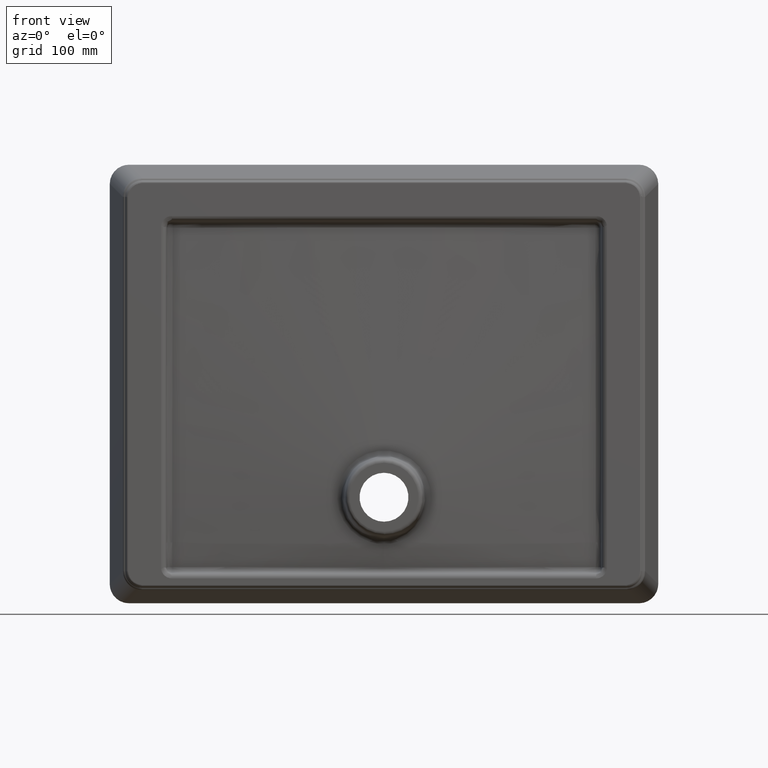
[diagram: clean part render]
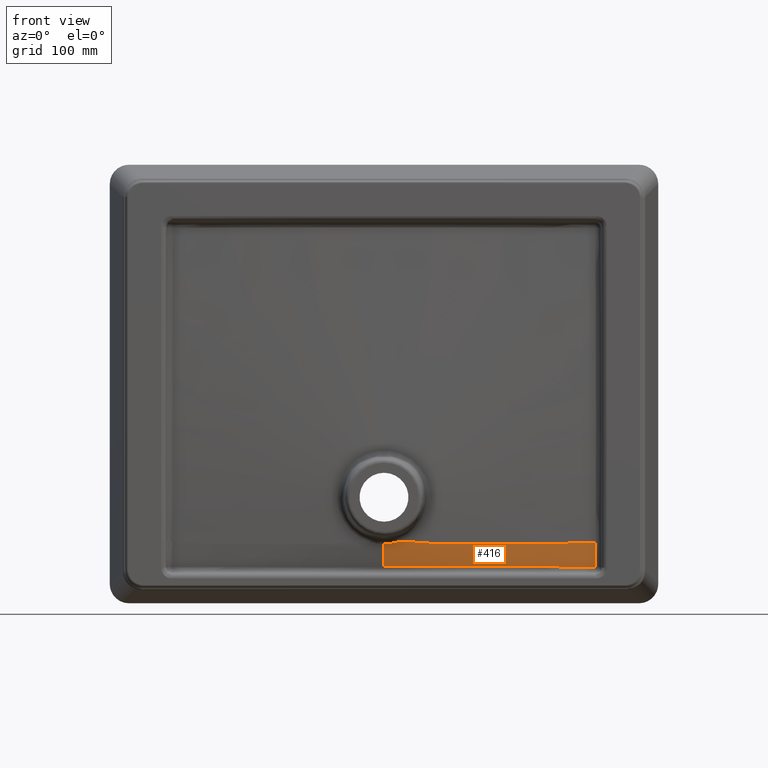
[diagram: same view with one face highlighted and labeled with its STEP entity id]
A machine part, front view. The second image highlights one B-rep face of the part: STEP entity #416.
In plain terms, the highlighted face is a freeform B-spline surface patch.
Its self-contained STEP definition (entity closure, byte-faithful):
#416=ADVANCED_FACE('',(#560),#519,.T.);
#519=B_SPLINE_SURFACE_WITH_KNOTS('',3,3,((#5228,#5229,#5230,#5231,#5232,
#5233,#5234,#5235,#5236,#5237,#5238,#5239,#5240,#5241,#5242,#5243),(#5244,
#5245,#5246,#5247,#5248,#5249,#5250,#5251,#5252,#5253,#5254,#5255,#5256,
#5257,#5258,#5259),(#5260,#5261,#5262,#5263,#5264,#5265,#5266,#5267,#5268,
#5269,#5270,#5271,#5272,#5273,#5274,#5275),(#5276,#5277,#5278,#5279,#5280,
#5281,#5282,#5283,#5284,#5285,#5286,#5287,#5288,#5289,#5290,#5291),(#5292,
#5293,#5294,#5295,#5296,#5297,#5298,#5299,#5300,#5301,#5302,#5303,#5304,
#5305,#5306,#5307),(#5308,#5309,#5310,#5311,#5312,#5313,#5314,#5315,#5316,
#5317,#5318,#5319,#5320,#5321,#5322,#5323),(#5324,#5325,#5326,#5327,#5328,
#5329,#5330,#5331,#5332,#5333,#5334,#5335,#5336,#5337,#5338,#5339),(#5340,
#5341,#5342,#5343,#5344,#5345,#5346,#5347,#5348,#5349,#5350,#5351,#5352,
#5353,#5354,#5355),(#5356,#5357,#5358,#5359,#5360,#5361,#5362,#5363,#5364,
#5365,#5366,#5367,#5368,#5369,#5370,#5371),(#5372,#5373,#5374,#5375,#5376,
#5377,#5378,#5379,#5380,#5381,#5382,#5383,#5384,#5385,#5386,#5387),(#5388,
#5389,#5390,#5391,#5392,#5393,#5394,#5395,#5396,#5397,#5398,#5399,#5400,
#5401,#5402,#5403),(#5404,#5405,#5406,#5407,#5408,#5409,#5410,#5411,#5412,
#5413,#5414,#5415,#5416,#5417,#5418,#5419),(#5420,#5421,#5422,#5423,#5424,
#5425,#5426,#5427,#5428,#5429,#5430,#5431,#5432,#5433,#5434,#5435)),
 .UNSPECIFIED.,.F.,.F.,.F.,(4,3,3,3,4),(4,3,3,3,3,4),(0.,0.125,0.25,0.5,
1.),(0.,0.25,0.5,0.75,0.875,1.),.UNSPECIFIED.);
#560=FACE_OUTER_BOUND('',#707,.T.);
#707=EDGE_LOOP('',(#1218,#1219,#1220,#1221,#1222,#1223,#1224,#1225));
#839=B_SPLINE_CURVE_WITH_KNOTS('',3,(#3304,#3305,#3306,#3307),
 .UNSPECIFIED.,.F.,.F.,(4,4),(0.,1.),.UNSPECIFIED.);
#840=B_SPLINE_CURVE_WITH_KNOTS('',3,(#3309,#3310,#3311,#3312,#3313,#3314,
#3315,#3316,#3317,#3318,#3319,#3320,#3321,#3322,#3323,#3324,#3325,#3326,
#3327,#3328,#3329,#3330,#3331,#3332,#3333,#3334,#3335,#3336,#3337,#3338,
#3339,#3340,#3341,#3342,#3343,#3344,#3345,#3346,#3347,#3348,#3349,#3350,
#3351,#3352,#3353,#3354,#3355,#3356,#3357,#3358,#3359,#3360,#3361,#3362,
#3363,#3364,#3365,#3366,#3367,#3368,#3369,#3370,#3371,#3372,#3373,#3374,
#3375,#3376,#3377,#3378,#3379,#3380,#3381,#3382,#3383,#3384,#3385,#3386,
#3387,#3388,#3389,#3390,#3391,#3392,#3393,#3394,#3395,#3396,#3397,#3398,
#3399,#3400,#3401,#3402,#3403,#3404,#3405,#3406,#3407,#3408,#3409,#3410,
#3411,#3412,#3413,#3414,#3415,#3416,#3417,#3418,#3419,#3420,#3421,#3422,
#3423,#3424,#3425,#3426,#3427,#3428,#3429,#3430,#3431,#3432,#3433,#3434,
#3435,#3436,#3437,#3438,#3439,#3440,#3441,#3442,#3443,#3444,#3445,#3446,
#3447,#3448,#3449,#3450,#3451,#3452,#3453,#3454,#3455,#3456,#3457,#3458,
#3459,#3460,#3461,#3462,#3463,#3464,#3465,#3466,#3467,#3468,#3469,#3470,
#3471,#3472,#3473,#3474,#3475,#3476,#3477,#3478,#3479,#3480,#3481,#3482,
#3483,#3484,#3485,#3486,#3487,#3488,#3489,#3490,#3491,#3492,#3493,#3494,
#3495,#3496,#3497,#3498,#3499,#3500,#3501,#3502,#3503,#3504),
 .UNSPECIFIED.,.F.,.F.,(4,2,2,2,2,2,2,2,2,2,2,2,2,2,2,2,2,2,2,2,2,2,2,1,
1,1,1,2,2,2,2,2,2,2,2,2,2,2,2,2,2,2,2,2,2,2,2,2,2,2,2,2,2,2,2,2,2,2,2,2,
2,2,2,2,2,2,2,2,2,2,2,2,2,2,2,2,2,2,2,2,2,2,2,2,2,2,2,2,2,2,2,2,2,2,2,2,
2,2,2,4),(0.,0.0156249999999969,0.0234374999999954,0.0312499999999938,0.0390624999999923,
0.0468749999999908,0.0546874999999892,0.0585937499999885,0.0624999999999877,
0.066406249999987,0.0703124999999862,0.0781249999999846,0.0820312499999838,
0.085937499999983,0.0898437499999823,0.0917968749999818,0.0927734374999817,
0.0937499999999816,0.0976562499999813,0.101562499999981,0.105468749999981,
0.10937499999998,0.11132812499998,0.11328124999998,0.11718749999998,0.12499999999998,
0.12890624999998,0.13085937499998,0.13281249999998,0.140624999999979,0.148437499999979,
0.152343749999979,0.153320312499979,0.154296874999979,0.156249999999979,
0.160156249999979,0.164062499999979,0.166015624999979,0.167968749999978,
0.169921874999978,0.171874999999978,0.175781249999978,0.179687499999978,
0.181640624999977,0.183593749999977,0.187499999999977,0.218749999999974,
0.249999999999972,0.257812499999971,0.261718749999971,0.26562499999997,
0.281249999999969,0.289062499999969,0.291015624999969,0.292968749999968,
0.296874999999968,0.312499999999966,0.343749999999961,0.374999999999956,
0.406249999999951,0.437499999999946,0.439453124999946,0.441406249999946,
0.445312499999946,0.453124999999946,0.468749999999946,0.484374999999946,
0.492187499999946,0.499999999999946,0.515624999999946,0.531249999999946,
0.562499999999946,0.593749999999946,0.609374999999946,0.617187499999946,
0.621093749999946,0.623046874999946,0.624999999999946,0.749999999999942,
0.781249999999941,0.81249999999994,0.82031249999994,0.82812499999994,0.83007812499994,
0.83203124999994,0.83398437499994,0.835937499999941,0.843749999999943,0.874999999999953,
0.890624999999958,0.898437499999961,0.900390624999961,0.902343749999962,
0.906249999999964,0.92187499999997,0.937499999999977,0.94531249999998,0.953124999999983,
0.968749999999988,1.),.UNSPECIFIED.);
#870=B_SPLINE_CURVE_WITH_KNOTS('',3,(#3902,#3903,#3904,#3905,#3906,#3907),
 .UNSPECIFIED.,.F.,.F.,(4,2,4),(0.,0.5,1.),.UNSPECIFIED.);
#912=B_SPLINE_CURVE_WITH_KNOTS('',3,(#5195,#5196,#5197,#5198),
 .UNSPECIFIED.,.F.,.F.,(4,4),(0.,1.),.UNSPECIFIED.);
#913=B_SPLINE_CURVE_WITH_KNOTS('',3,(#5201,#5202,#5203,#5204,#5205,#5206,
#5207),.UNSPECIFIED.,.F.,.F.,(4,3,4),(0.,0.444975304330871,1.),
 .UNSPECIFIED.);
#914=B_SPLINE_CURVE_WITH_KNOTS('',3,(#5208,#5209,#5210,#5211,#5212,#5213,
#5214),.UNSPECIFIED.,.F.,.F.,(4,3,4),(0.,0.999514951553295,1.),
 .UNSPECIFIED.);
#915=B_SPLINE_CURVE_WITH_KNOTS('',3,(#5216,#5217,#5218,#5219,#5220,#5221),
 .UNSPECIFIED.,.F.,.F.,(4,2,4),(0.,0.5,1.),.UNSPECIFIED.);
#916=B_SPLINE_CURVE_WITH_KNOTS('',3,(#5222,#5223,#5224,#5225,#5226,#5227),
 .UNSPECIFIED.,.F.,.F.,(4,2,4),(0.,0.5,1.),.UNSPECIFIED.);
#1218=ORIENTED_EDGE('',*,*,#1942,.T.);
#1219=ORIENTED_EDGE('',*,*,#1943,.T.);
#1220=ORIENTED_EDGE('',*,*,#1836,.F.);
#1221=ORIENTED_EDGE('',*,*,#1835,.F.);
#1222=ORIENTED_EDGE('',*,*,#1944,.T.);
#1223=ORIENTED_EDGE('',*,*,#1945,.T.);
#1224=ORIENTED_EDGE('',*,*,#1879,.T.);
#1225=ORIENTED_EDGE('',*,*,#1946,.T.);
#1659=VERTEX_POINT('',#3303);
#1660=VERTEX_POINT('',#3308);
#1661=VERTEX_POINT('',#3505);
#1697=VERTEX_POINT('',#3901);
#1698=VERTEX_POINT('',#3908);
#1735=VERTEX_POINT('',#5199);
#1736=VERTEX_POINT('',#5200);
#1737=VERTEX_POINT('',#5215);
#1835=EDGE_CURVE('',#1659,#1660,#839,.T.);
#1836=EDGE_CURVE('',#1660,#1661,#840,.T.);
#1879=EDGE_CURVE('',#1698,#1697,#870,.T.);
#1942=EDGE_CURVE('',#1735,#1736,#912,.T.);
#1943=EDGE_CURVE('',#1736,#1661,#913,.T.);
#1944=EDGE_CURVE('',#1659,#1737,#914,.T.);
#1945=EDGE_CURVE('',#1737,#1698,#915,.T.);
#1946=EDGE_CURVE('',#1697,#1735,#916,.T.);
#3303=CARTESIAN_POINT('',(12.7641846461813,-148.449136125179,56.3514457522441));
#3304=CARTESIAN_POINT('',(12.7641831222681,-148.45028316331,56.3511137498274));
#3305=CARTESIAN_POINT('',(13.01532953824,-148.445446886754,56.3332520757364));
#3306=CARTESIAN_POINT('',(13.2677387840246,-148.440542512188,56.3164499230202));
#3307=CARTESIAN_POINT('',(13.521429877298,-148.435570039612,56.3007535722057));
#3308=CARTESIAN_POINT('',(13.5215017947676,-148.433203962451,56.3008718843341));
#3309=CARTESIAN_POINT('',(13.5215364294115,-148.435569378775,56.3007756847339));
#3310=CARTESIAN_POINT('',(14.4252144634466,-148.42996459115,56.4883119187415));
#3311=CARTESIAN_POINT('',(15.3381803923015,-148.420629479891,56.6339492582143));
#3312=CARTESIAN_POINT('',(16.8080204288,-148.398163937486,56.7669306670097));
#3313=CARTESIAN_POINT('',(17.3433159636829,-148.386913906574,56.7614362376043));
#3314=CARTESIAN_POINT('',(18.2693596732294,-148.367457159542,56.7652615796201));
#3315=CARTESIAN_POINT('',(18.5556881932553,-148.362597374083,56.7948397162348));
#3316=CARTESIAN_POINT('',(19.387714490138,-148.343925936491,56.793499642557));
#3317=CARTESIAN_POINT('',(19.8958899407612,-148.331484561331,56.7758054120756));
#3318=CARTESIAN_POINT('',(21.1059721877338,-148.300390498282,56.7263237758037));
#3319=CARTESIAN_POINT('',(21.5568838424795,-148.288136250257,56.7019053632918));
#3320=CARTESIAN_POINT('',(22.5279929124427,-148.260264425107,56.626534572149));
#3321=CARTESIAN_POINT('',(23.0359187665822,-148.245912236566,56.600240230788));
#3322=CARTESIAN_POINT('',(23.3777910143892,-148.236209245294,56.5834179737185));
#3323=CARTESIAN_POINT('',(23.5656287417157,-148.23071672436,56.5708227996222));
#3324=CARTESIAN_POINT('',(24.0915526661437,-148.215215301469,56.5373685934679));
#3325=CARTESIAN_POINT('',(24.4716167465737,-148.203989620005,56.5153134706294));
#3326=CARTESIAN_POINT('',(25.1139035292725,-148.184931084614,56.482102970947));
#3327=CARTESIAN_POINT('',(25.384431086423,-148.176839613303,56.4692235239053));
#3328=CARTESIAN_POINT('',(25.8219864277111,-148.163532263446,56.4452312374962));
#3329=CARTESIAN_POINT('',(25.9346844456366,-148.160014572978,56.4374792255796));
#3330=CARTESIAN_POINT('',(26.6425556726926,-148.13719254716,56.3757970390452));
#3331=CARTESIAN_POINT('',(27.1500856490713,-148.120511521211,56.32949226275));
#3332=CARTESIAN_POINT('',(27.9672485675921,-148.093290469182,56.2571223665317));
#3333=CARTESIAN_POINT('',(28.2489488704272,-148.083850199655,56.2325213669971));
#3334=CARTESIAN_POINT('',(28.8313927983221,-148.064236489565,56.1832704992501));
#3335=CARTESIAN_POINT('',(29.147304986458,-148.05354579265,56.1575990853675));
#3336=CARTESIAN_POINT('',(29.6250271638988,-148.037386822453,56.1213792511557));
#3337=CARTESIAN_POINT('',(29.8051675472403,-148.031277360882,56.1085009662102));
#3338=CARTESIAN_POINT('',(29.985993923155,-148.025068203816,56.0940005338302));
#3339=CARTESIAN_POINT('',(30.0313814148105,-148.023490990676,56.0899905177871));
#3340=CARTESIAN_POINT('',(30.0770489345454,-148.021863929789,56.0850197326812));
#3341=CARTESIAN_POINT('',(30.1667943594994,-148.018633674032,56.0745398833383));
#3342=CARTESIAN_POINT('',(30.2384090045914,-148.016060902024,56.0663753333138));
#3343=CARTESIAN_POINT('',(30.2470511300647,-148.015750670477,56.0654035918747));
#3344=CARTESIAN_POINT('',(30.3867708421355,-148.010782864701,56.0508350638881));
#3345=CARTESIAN_POINT('',(30.6593499966239,-148.001211375238,56.0256588086729));
#3346=CARTESIAN_POINT('',(31.2577177696986,-147.980246898526,55.9762282957103));
#3347=CARTESIAN_POINT('',(31.5547461410639,-147.969834962956,55.953400305829));
#3348=CARTESIAN_POINT('',(32.1442944417956,-147.949151697389,55.9111793347389));
#3349=CARTESIAN_POINT('',(32.4540074666197,-147.938297314986,55.8915054755541));
#3350=CARTESIAN_POINT('',(32.839273635891,-147.924561591727,55.8627171836098));
#3351=CARTESIAN_POINT('',(32.8777138733649,-147.923035585983,55.8557966164381));
#3352=CARTESIAN_POINT('',(33.3447453254482,-147.90573945802,55.8083482880054));
#3353=CARTESIAN_POINT('',(33.4199550593247,-147.902944213321,55.8007123599811));
#3354=CARTESIAN_POINT('',(33.6509374370893,-147.894349765895,55.7772462459279));
#3355=CARTESIAN_POINT('',(33.9978090925134,-147.881413067416,55.742000656981));
#3356=CARTESIAN_POINT('',(34.8099661605049,-147.850912246256,55.6594018992734));
#3357=CARTESIAN_POINT('',(35.7445357393279,-147.815333727504,55.5640240023275));
#3358=CARTESIAN_POINT('',(36.5678876359298,-147.783572140847,55.4794132222014));
#3359=CARTESIAN_POINT('',(36.9219536547639,-147.769824950262,55.4428697238139));
#3360=CARTESIAN_POINT('',(37.1582645290454,-147.760630138312,55.4184409183045));
#3361=CARTESIAN_POINT('',(37.3263030683589,-147.754076878798,55.4009776690728));
#3362=CARTESIAN_POINT('',(38.1840330083668,-147.720707930497,55.3167708154223));
#3363=CARTESIAN_POINT('',(38.7812148079083,-147.697622668637,55.2696242515042));
#3364=CARTESIAN_POINT('',(39.7894719472165,-147.658671938479,55.1976513655516));
#3365=CARTESIAN_POINT('',(40.2005706086019,-147.64280647018,55.1728106492533));
#3366=CARTESIAN_POINT('',(40.6738838379457,-147.624423112902,55.1428232781517));
#3367=CARTESIAN_POINT('',(40.8077873307249,-147.619197801338,55.1340843306759));
#3368=CARTESIAN_POINT('',(40.9450861355161,-147.613794254626,55.1240893440498));
#3369=CARTESIAN_POINT('',(41.033349719449,-147.610318188991,55.1176698908443));
#3370=CARTESIAN_POINT('',(41.0700109386898,-147.608875291055,55.115051339223));
#3371=CARTESIAN_POINT('',(41.0909499126222,-147.608053400819,55.1136175015509));
#3372=CARTESIAN_POINT('',(41.188831498952,-147.604217347189,55.1071372708802));
#3373=CARTESIAN_POINT('',(41.2889609572553,-147.600299271981,55.1007183785015));
#3374=CARTESIAN_POINT('',(41.6946068554836,-147.584462927993,55.0768035682037));
#3375=CARTESIAN_POINT('',(42.0251642544757,-147.571571388123,55.059104951223));
#3376=CARTESIAN_POINT('',(42.6394824762914,-147.547581550559,55.0286617252091));
#3377=CARTESIAN_POINT('',(43.0102732294429,-147.533085802183,55.0120946972211));
#3378=CARTESIAN_POINT('',(43.3041278684933,-147.52161907864,55.0005011873181));
#3379=CARTESIAN_POINT('',(43.3166638303676,-147.52112991059,55.0000587527892));
#3380=CARTESIAN_POINT('',(43.4154149395532,-147.51728387269,54.9965339297939));
#3381=CARTESIAN_POINT('',(43.5830781283932,-147.510736656287,54.9902563392146));
#3382=CARTESIAN_POINT('',(43.8144724607932,-147.501630805249,54.9802329524513));
#3383=CARTESIAN_POINT('',(43.9346168066514,-147.496879350946,54.9745900663412));
#3384=CARTESIAN_POINT('',(44.1838612297979,-147.486979384772,54.9621899810127));
#3385=CARTESIAN_POINT('',(44.1742806183803,-147.4873572493,54.9625480825217));
#3386=CARTESIAN_POINT('',(44.6152752730057,-147.469963632036,54.9451904575777));
#3387=CARTESIAN_POINT('',(44.8860855650187,-147.459277497594,54.935762114721));
#3388=CARTESIAN_POINT('',(45.3551306280355,-147.440740276968,54.9201312059938));
#3389=CARTESIAN_POINT('',(45.5747661853539,-147.432067685811,54.9137078741684));
#3390=CARTESIAN_POINT('',(45.9836968457392,-147.415869831754,54.9021026508044));
#3391=CARTESIAN_POINT('',(46.1606710192133,-147.408846920328,54.8971474998412));
#3392=CARTESIAN_POINT('',(46.3907010508338,-147.399747190888,54.8919590190573));
#3393=CARTESIAN_POINT('',(46.3793530315867,-147.400212256252,54.8926570652978));
#3394=CARTESIAN_POINT('',(46.7365516271467,-147.385992993453,54.8828857169282));
#3395=CARTESIAN_POINT('',(46.9977238144552,-147.375609678754,54.8771145246389));
#3396=CARTESIAN_POINT('',(49.1046049212763,-147.290226513303,54.7915423956871));
#3397=CARTESIAN_POINT('',(50.9842667913653,-147.213414748448,54.7473329099384));
#3398=CARTESIAN_POINT('',(54.7382110673983,-147.059215787992,54.7310118155593));
#3399=CARTESIAN_POINT('',(56.6130102737665,-146.978253780639,54.6409636711423));
#3400=CARTESIAN_POINT('',(58.964116440922,-146.888006088376,54.9596089090647));
#3401=CARTESIAN_POINT('',(59.4340453476354,-146.869855849378,55.0234154686529));
#3402=CARTESIAN_POINT('',(60.1385658952477,-146.842644847965,55.1246903380077));
#3403=CARTESIAN_POINT('',(60.3732680202706,-146.833582376384,55.1594596579902));
#3404=CARTESIAN_POINT('',(60.8425080303316,-146.815389411608,55.2283558796915));
#3405=CARTESIAN_POINT('',(61.076575324193,-146.804824950494,55.2134998470835));
#3406=CARTESIAN_POINT('',(62.2459907110282,-146.748515480597,55.0211276554422));
#3407=CARTESIAN_POINT('',(63.1418813440759,-146.705378534828,54.8790530152034));
#3408=CARTESIAN_POINT('',(64.6096745128139,-146.634735534528,54.6565294632456));
#3409=CARTESIAN_POINT('',(65.0394817417072,-146.621736237488,54.8607926351453));
#3410=CARTESIAN_POINT('',(65.6083746714593,-146.601304763892,55.0256528705782));
#3411=CARTESIAN_POINT('',(65.7222049752455,-146.597382669709,55.0648262375663));
#3412=CARTESIAN_POINT('',(65.9497377268422,-146.588830096643,55.1183669118678));
#3413=CARTESIAN_POINT('',(66.0628198590473,-146.582414886563,55.0681708196332));
#3414=CARTESIAN_POINT('',(66.403017788004,-146.564508549298,54.9666410188153));
#3415=CARTESIAN_POINT('',(66.6297172845771,-146.552570253317,54.8989193193855));
#3416=CARTESIAN_POINT('',(67.7638943762938,-146.492839267647,54.56069749591));
#3417=CARTESIAN_POINT('',(68.7275409735668,-146.453293088656,54.6798515350869));
#3418=CARTESIAN_POINT('',(71.5690057406466,-146.327596118722,54.7385011154183));
#3419=CARTESIAN_POINT('',(73.4624663921147,-146.243367758437,54.7967597669218));
#3420=CARTESIAN_POINT('',(77.2472106605089,-146.074705608821,54.9720081704373));
#3421=CARTESIAN_POINT('',(79.1232677657115,-145.985236461684,54.8599769478805));
#3422=CARTESIAN_POINT('',(82.8716644599585,-145.807257643472,54.7040576452518));
#3423=CARTESIAN_POINT('',(84.7469181719425,-145.718488573712,54.6602864335146));
#3424=CARTESIAN_POINT('',(88.4977258855029,-145.540061323594,54.5797161598963));
#3425=CARTESIAN_POINT('',(90.4357646911075,-145.448266300689,54.5799549255342));
#3426=CARTESIAN_POINT('',(92.28964315374,-145.359993169118,54.5793752291759));
#3427=CARTESIAN_POINT('',(92.4465911133763,-145.352584680674,54.5824001966708));
#3428=CARTESIAN_POINT('',(92.6814419324693,-145.341445041892,54.584669260725));
#3429=CARTESIAN_POINT('',(92.7988686194928,-145.335841022344,54.5843246981259));
#3430=CARTESIAN_POINT('',(93.1511401995651,-145.319149279055,54.5890573677885));
#3431=CARTESIAN_POINT('',(93.3859959270798,-145.30792096107,54.5879493387905));
#3432=CARTESIAN_POINT('',(94.0905121451216,-145.274539375837,54.599552629295));
#3433=CARTESIAN_POINT('',(94.560221269517,-145.252089650795,54.599680417809));
#3434=CARTESIAN_POINT('',(95.9691410826103,-145.185251848476,54.6275733624805));
#3435=CARTESIAN_POINT('',(96.9084788088977,-145.140447659413,54.6402943393013));
#3436=CARTESIAN_POINT('',(98.7866308712984,-145.051123725498,54.6889626117704));
#3437=CARTESIAN_POINT('',(99.725716066473,-145.006404353444,54.7160701349987));
#3438=CARTESIAN_POINT('',(101.133934804728,-144.939348373296,54.7651028524435));
#3439=CARTESIAN_POINT('',(101.603341278618,-144.916987303309,54.782372870013));
#3440=CARTESIAN_POINT('',(102.542017398366,-144.872267526567,54.8194405676386));
#3441=CARTESIAN_POINT('',(102.976578773147,-144.851724214159,54.8459785326668));
#3442=CARTESIAN_POINT('',(104.474587825188,-144.778209595856,54.804909593179));
#3443=CARTESIAN_POINT('',(105.358714940714,-144.734771514927,54.7820398229324));
#3444=CARTESIAN_POINT('',(107.236943432316,-144.642574115893,54.7448182617173));
#3445=CARTESIAN_POINT('',(108.176087475679,-144.596427025316,54.7276017336681));
#3446=CARTESIAN_POINT('',(110.993788690244,-144.458109877545,54.6946215598283));
#3447=CARTESIAN_POINT('',(112.872382963624,-144.365786815646,54.6822948129311));
#3448=CARTESIAN_POINT('',(116.629518549634,-144.181285269304,54.6957094994707));
#3449=CARTESIAN_POINT('',(118.508075465598,-144.088955488172,54.7132132959465));
#3450=CARTESIAN_POINT('',(121.32545381194,-143.950505605471,54.7633696871752));
#3451=CARTESIAN_POINT('',(122.264562241604,-143.904337879766,54.7827995954277));
#3452=CARTESIAN_POINT('',(123.673045104305,-143.835088583218,54.8172102019933));
#3453=CARTESIAN_POINT('',(124.142535231938,-143.812006083151,54.8296500476196));
#3454=CARTESIAN_POINT('',(124.846723880834,-143.777368916735,54.8487868695941));
#3455=CARTESIAN_POINT('',(125.056293445688,-143.767062704342,54.8547552668881));
#3456=CARTESIAN_POINT('',(125.500468949179,-143.745210803704,54.8675167444341));
#3457=CARTESIAN_POINT('',(125.579765571675,-143.741344001838,54.8719265921492));
#3458=CARTESIAN_POINT('',(125.642579702752,-143.73812710816,54.8661767472368));
#3459=CARTESIAN_POINT('',(125.86556698718,-143.726985353448,54.8625026404961));
#3460=CARTESIAN_POINT('',(133.48630878193,-143.344824653229,54.6578708327449));
#3461=CARTESIAN_POINT('',(140.993629178066,-142.968229494467,54.6175941198658));
#3462=CARTESIAN_POINT('',(150.37472860291,-142.497882166591,54.7944549027117));
#3463=CARTESIAN_POINT('',(152.250764346886,-142.403685844056,54.8308070532208));
#3464=CARTESIAN_POINT('',(156.002347613315,-142.215418208413,54.9314411489869));
#3465=CARTESIAN_POINT('',(157.854081351106,-142.122000159288,54.9544787378004));
#3466=CARTESIAN_POINT('',(160.533384095078,-141.986841216421,55.0036689107773));
#3467=CARTESIAN_POINT('',(161.123030116925,-141.957100748502,55.0157478261499));
#3468=CARTESIAN_POINT('',(162.089573133153,-141.908339266505,55.0359509480726));
#3469=CARTESIAN_POINT('',(162.457827162624,-141.889751815773,55.0435252777232));
#3470=CARTESIAN_POINT('',(162.774201923003,-141.873759115191,55.0483179015249));
#3471=CARTESIAN_POINT('',(162.79948605152,-141.872480325813,55.0486421515024));
#3472=CARTESIAN_POINT('',(163.056028221354,-141.859498201422,55.0515523764447));
#3473=CARTESIAN_POINT('',(163.092395047149,-141.857657983663,55.0519811982242));
#3474=CARTESIAN_POINT('',(163.347125403632,-141.844768876949,55.0550932682586));
#3475=CARTESIAN_POINT('',(163.476553252677,-141.838220501565,55.0567662261681));
#3476=CARTESIAN_POINT('',(163.611900252162,-141.831372857453,55.0585510547133));
#3477=CARTESIAN_POINT('',(163.646379544344,-141.829628516477,55.0590170503897));
#3478=CARTESIAN_POINT('',(163.959167282336,-141.813805387007,55.0633654245317));
#3479=CARTESIAN_POINT('',(164.402039511421,-141.791404878135,55.0698726451092));
#3480=CARTESIAN_POINT('',(167.376695086762,-141.641002330429,55.1235275170436));
#3481=CARTESIAN_POINT('',(169.123428324083,-141.552647774148,55.1633276306466));
#3482=CARTESIAN_POINT('',(171.934898019947,-141.410411314855,55.23521162975));
#3483=CARTESIAN_POINT('',(173.011992696076,-141.355895598445,55.2629276423873));
#3484=CARTESIAN_POINT('',(174.848399075486,-141.262945121562,55.3160486283707));
#3485=CARTESIAN_POINT('',(175.254829818574,-141.242382935426,55.3294197112975));
#3486=CARTESIAN_POINT('',(175.417744127024,-141.234148875289,55.3354234053331));
#3487=CARTESIAN_POINT('',(175.458197867505,-141.232106829916,55.3371220413972));
#3488=CARTESIAN_POINT('',(175.667956357575,-141.221516078185,55.345819270032));
#3489=CARTESIAN_POINT('',(175.8138432467,-141.214151243971,55.3520045455497));
#3490=CARTESIAN_POINT('',(176.019959830426,-141.203742339981,55.3604987814138));
#3491=CARTESIAN_POINT('',(176.176198684554,-141.195844719089,55.3663615745796));
#3492=CARTESIAN_POINT('',(177.05156848374,-141.151564856803,55.3970330707798));
#3493=CARTESIAN_POINT('',(178.053197277161,-141.100807341926,55.4255885803804));
#3494=CARTESIAN_POINT('',(180.660544442212,-140.968625062076,55.505101419164));
#3495=CARTESIAN_POINT('',(181.552734975995,-140.923381618611,55.5346706497622));
#3496=CARTESIAN_POINT('',(182.538402819023,-140.87334052104,55.5629664531267));
#3497=CARTESIAN_POINT('',(182.949605680793,-140.852474882861,55.5759091034297));
#3498=CARTESIAN_POINT('',(183.937450603241,-140.80237306186,55.6104384908816));
#3499=CARTESIAN_POINT('',(184.626204857321,-140.767460131988,55.6372286998811));
#3500=CARTESIAN_POINT('',(185.587645193339,-140.718715006531,55.6746393734965));
#3501=CARTESIAN_POINT('',(186.297978241651,-140.682670728552,55.7005948383916));
#3502=CARTESIAN_POINT('',(188.637390444336,-140.563895311586,55.784662775245));
#3503=CARTESIAN_POINT('',(190.4748774977,-140.470521589575,55.8487879922587));
#3504=CARTESIAN_POINT('',(192.591136890496,-140.362957756862,55.9316704483372));
#3505=CARTESIAN_POINT('',(192.591066230794,-140.362696038264,55.9330797596144));
#3901=CARTESIAN_POINT('',(5.42772167533959E-014,-144.374212355061,33.691170977037));
#3902=CARTESIAN_POINT('',(-6.46167053698145E-014,-148.437146453491,54.496182055299));
#3903=CARTESIAN_POINT('',(-6.46167053698145E-014,-148.178412760808,50.9645613721209));
#3904=CARTESIAN_POINT('',(1.26558653572948E-013,-147.701085922828,47.4487989864137));
#3905=CARTESIAN_POINT('',(1.26558653572948E-013,-146.335242705805,40.4962977367072));
#3906=CARTESIAN_POINT('',(1.67546322291774E-014,-145.413853373541,37.0765967602503));
#3907=CARTESIAN_POINT('',(1.67546322291774E-014,-144.374212355061,33.691170977037));
#3908=CARTESIAN_POINT('',(-1.71161214561503E-012,-148.437146453506,54.4961820552979));
#5195=CARTESIAN_POINT('',(144.874239933799,-140.916084768617,33.7377846328952));
#5196=CARTESIAN_POINT('',(160.793088627219,-140.426779695497,33.6570012930939));
#5197=CARTESIAN_POINT('',(176.71236114122,-139.952319580668,33.5711792614916));
#5198=CARTESIAN_POINT('',(192.632383294963,-139.50352932438,33.480217100095));
#5199=CARTESIAN_POINT('',(144.874239933799,-140.916084768617,33.7377846328948));
#5200=CARTESIAN_POINT('',(192.632383294963,-139.50352932438,33.4802171000949));
#5201=CARTESIAN_POINT('',(192.632383294965,-139.50352932438,33.480217100095));
#5202=CARTESIAN_POINT('',(192.620989980802,-139.684476947349,36.8086287098714));
#5203=CARTESIAN_POINT('',(192.609604077552,-139.877531497188,40.1365796473653));
#5204=CARTESIAN_POINT('',(192.602472185516,-140.019152652012,43.4669082015147));
#5205=CARTESIAN_POINT('',(192.593577097847,-140.195786367405,47.6205835950423));
#5206=CARTESIAN_POINT('',(192.589255843472,-140.309277761608,51.7773960863029));
#5207=CARTESIAN_POINT('',(192.591135525825,-140.362427224362,55.9344947702649));
#5208=CARTESIAN_POINT('',(12.7642771779724,-148.4479078816,56.3501762191289));
#5209=CARTESIAN_POINT('',(12.7249585267635,-148.447913251893,56.3378249209168));
#5210=CARTESIAN_POINT('',(12.6856218745915,-148.447918731681,56.3255307809679));
#5211=CARTESIAN_POINT('',(12.6462674715568,-148.447924318656,56.3132938753204));
#5212=CARTESIAN_POINT('',(12.6462483735013,-148.447924321367,56.313287936948));
#5213=CARTESIAN_POINT('',(12.6462292754415,-148.44792432408,56.3132819985889));
#5214=CARTESIAN_POINT('',(12.6462101773776,-148.44792432679,56.3132760602433));
#5215=CARTESIAN_POINT('',(12.6462101773776,-148.44792432679,56.3132760602433));
#5216=CARTESIAN_POINT('',(12.6462101773776,-148.44792432679,56.3132760602433));
#5217=CARTESIAN_POINT('',(10.6125306715262,-148.452822061707,55.6813470744794));
#5218=CARTESIAN_POINT('',(8.49585600689487,-148.446027022285,55.2548624967629));
#5219=CARTESIAN_POINT('',(4.28038607775682,-148.439620290306,54.6496495446374));
#5220=CARTESIAN_POINT('',(2.12935214527339,-148.437144164918,54.4962003475804));
#5221=CARTESIAN_POINT('',(3.5167606861582E-006,-148.437146453492,54.4961820554022));
#5222=CARTESIAN_POINT('',(2.62084083742003E-014,-144.374212355061,33.691170977037));
#5223=CARTESIAN_POINT('',(24.1545952311833,-144.374229090924,33.6913734406763));
#5224=CARTESIAN_POINT('',(48.3030439459599,-143.794004787585,33.7949110653087));
#5225=CARTESIAN_POINT('',(96.591145595911,-142.443494768115,33.8854135924832));
#5226=CARTESIAN_POINT('',(120.732212569207,-141.65814951792,33.8602981159766));
#5227=CARTESIAN_POINT('',(144.874239933799,-140.916084768617,33.7377846328943));
#5228=CARTESIAN_POINT('',(-1.16016967688488,-142.903102487385,28.9006966544893));
#5229=CARTESIAN_POINT('',(-1.1613945624465,-143.592231970971,31.1447521522583));
#5230=CARTESIAN_POINT('',(-1.16262680555921,-144.290473088626,33.352465072024));
#5231=CARTESIAN_POINT('',(-1.1638412605995,-144.971958634623,35.6533678146771));
#5232=CARTESIAN_POINT('',(-1.16505571563978,-145.653444180619,37.9542705573301));
#5233=CARTESIAN_POINT('',(-1.16625070606781,-146.245644201298,40.2830679358605));
#5234=CARTESIAN_POINT('',(-1.16744444499679,-146.744337035427,42.6324769125019));
#5235=CARTESIAN_POINT('',(-1.16863818392577,-147.243029869555,44.9818858891432));
#5236=CARTESIAN_POINT('',(-1.16983090238484,-147.648215250313,47.3519081395408));
#5237=CARTESIAN_POINT('',(-1.17101181502127,-147.955604707844,49.7352219956982));
#5238=CARTESIAN_POINT('',(-1.17160227133949,-148.10929943661,50.9268789237769));
#5239=CARTESIAN_POINT('',(-1.17218930122872,-148.238544158988,52.1218579946971));
#5240=CARTESIAN_POINT('',(-1.17276855604118,-148.342797085859,53.3192382519179));
#5241=CARTESIAN_POINT('',(-1.17334781085364,-148.44705001273,54.5166185091386));
#5242=CARTESIAN_POINT('',(-1.17391567715228,-148.520370324294,55.7300308608155));
#5243=CARTESIAN_POINT('',(-1.17447781910903,-148.581649002369,56.902506134587));
#5244=CARTESIAN_POINT('',(6.99311488268048,-142.902061800271,28.8975804241192));
#5245=CARTESIAN_POINT('',(7.00044504326575,-143.591489589267,31.1425030608056));
#5246=CARTESIAN_POINT('',(7.00777049235162,-144.290042490531,33.3510231264209));
#5247=CARTESIAN_POINT('',(7.01510792180379,-144.97181408522,35.6528804593501));
#5248=CARTESIAN_POINT('',(7.02244535125596,-145.653585679909,37.9547377922793));
#5249=CARTESIAN_POINT('',(7.02978446680316,-146.24592083062,40.2845276064224));
#5250=CARTESIAN_POINT('',(7.03704250553961,-146.74466013284,42.6346078742532));
#5251=CARTESIAN_POINT('',(7.04430054427606,-147.24339943506,44.9846881420841));
#5252=CARTESIAN_POINT('',(7.0514772753871,-147.648542733875,47.3550605861458));
#5253=CARTESIAN_POINT('',(7.05851888683272,-147.955856952869,49.7380494018443));
#5254=CARTESIAN_POINT('',(7.06203969255553,-148.109514062366,50.9295438096935));
#5255=CARTESIAN_POINT('',(7.06552719244463,-148.238712758739,52.1241916243008));
#5256=CARTESIAN_POINT('',(7.06897766031117,-148.342917384376,53.3210279939516));
#5257=CARTESIAN_POINT('',(7.07242812817771,-148.447122010013,54.5178643636023));
#5258=CARTESIAN_POINT('',(7.07583158556765,-148.520392592161,55.7304566696734));
#5259=CARTESIAN_POINT('',(7.07921996212045,-148.581622725359,56.9020036827152));
#5260=CARTESIAN_POINT('',(15.162411787166,-142.876864956982,28.9368116284889));
#5261=CARTESIAN_POINT('',(15.1794261300135,-143.558777740296,31.1828656778939));
#5262=CARTESIAN_POINT('',(15.1966507547002,-144.249916578044,33.3924391043002));
#5263=CARTESIAN_POINT('',(15.2133416890282,-144.924004784337,35.6955582596113));
#5264=CARTESIAN_POINT('',(15.2300326233563,-145.598092990631,37.9986774149224));
#5265=CARTESIAN_POINT('',(15.2461940944824,-146.182597252033,40.3296571659611));
#5266=CARTESIAN_POINT('',(15.2616784986738,-146.673442426228,42.6805281105001));
#5267=CARTESIAN_POINT('',(15.2771629028651,-147.164287600423,45.0313990550391));
#5268=CARTESIAN_POINT('',(15.2919700700029,-147.561473645761,47.4021629229977));
#5269=CARTESIAN_POINT('',(15.3059763523496,-147.860846211925,49.7848209505578));
#5270=CARTESIAN_POINT('',(15.312979493523,-148.010532495007,50.9761499643379));
#5271=CARTESIAN_POINT('',(15.3197828032549,-148.135764168318,52.1704519011472));
#5272=CARTESIAN_POINT('',(15.3263733039089,-148.236014738756,53.3667219205795));
#5273=CARTESIAN_POINT('',(15.3329638045629,-148.336265309194,54.5629919400118));
#5274=CARTESIAN_POINT('',(15.3392263052468,-148.405559594697,55.7747275872875));
#5275=CARTESIAN_POINT('',(15.3455810679624,-148.462949773182,56.9453247550273));
#5276=CARTESIAN_POINT('',(23.3189385807232,-142.81867203413,29.0210644552444));
#5277=CARTESIAN_POINT('',(23.3421447705466,-143.485956806046,31.2660674461108));
#5278=CARTESIAN_POINT('',(23.3657613005547,-144.162544017203,33.4747704672753));
#5279=CARTESIAN_POINT('',(23.3883784558917,-144.821807450209,35.7765696573528));
#5280=CARTESIAN_POINT('',(23.4109956112288,-145.481070883215,38.0783688474302));
#5281=CARTESIAN_POINT('',(23.4323101358378,-146.051433500165,40.4077036090323));
#5282=CARTESIAN_POINT('',(23.4521448587229,-146.528941419365,42.7563641745588));
#5283=CARTESIAN_POINT('',(23.471979581608,-147.006449338566,45.1050247400853));
#5284=CARTESIAN_POINT('',(23.4903343491435,-147.391102604533,47.473012793341));
#5285=CARTESIAN_POINT('',(23.5070555305752,-147.678863799327,49.8520939212967));
#5286=CARTESIAN_POINT('',(23.5154161212911,-147.822744396724,51.0416344852745));
#5287=CARTESIAN_POINT('',(23.5233686968074,-147.942400661246,52.2339477797361));
#5288=CARTESIAN_POINT('',(23.5308964876591,-148.037320179744,53.4279999933129));
#5289=CARTESIAN_POINT('',(23.5384242785109,-148.132239698241,54.6220522068897));
#5290=CARTESIAN_POINT('',(23.5453526642378,-148.196458003533,55.8311714580164));
#5291=CARTESIAN_POINT('',(23.552300420864,-148.249048318976,56.9993739678025));
#5292=CARTESIAN_POINT('',(31.4754653742803,-142.760479111278,29.105317282));
#5293=CARTESIAN_POINT('',(31.5048634110796,-143.413135871797,31.3492692143277));
#5294=CARTESIAN_POINT('',(31.5348718464092,-144.075171456363,33.5571018302505));
#5295=CARTESIAN_POINT('',(31.5634152227552,-144.719610116081,35.8575810550943));
#5296=CARTESIAN_POINT('',(31.5919585991013,-145.364048775799,38.158060279938));
#5297=CARTESIAN_POINT('',(31.6184261771932,-145.920269748296,40.4857500521034));
#5298=CARTESIAN_POINT('',(31.642611218772,-146.384440412502,42.8322002386175));
#5299=CARTESIAN_POINT('',(31.6667962603509,-146.848611076708,45.1786504251315));
#5300=CARTESIAN_POINT('',(31.6886986282841,-147.220731563306,47.5438626636843));
#5301=CARTESIAN_POINT('',(31.7081347088008,-147.49688138673,49.9193668920355));
#5302=CARTESIAN_POINT('',(31.7178527490591,-147.634956298442,51.1071190062112));
#5303=CARTESIAN_POINT('',(31.7269545903599,-147.749037154175,52.297443658325));
#5304=CARTESIAN_POINT('',(31.7354196714094,-147.838625620732,53.4892780660463));
#5305=CARTESIAN_POINT('',(31.7438847524589,-147.928214087289,54.6811124737677));
#5306=CARTESIAN_POINT('',(31.7514790232287,-147.98735641237,55.8876153287453));
#5307=CARTESIAN_POINT('',(31.7590197737655,-148.035146864769,57.0534231805778));
#5308=CARTESIAN_POINT('',(39.6230999479253,-142.670024316698,29.2309497047954));
#5309=CARTESIAN_POINT('',(39.6565035957521,-143.301759485611,31.4712274045454));
#5310=CARTESIAN_POINT('',(39.6907349666179,-143.942895638442,33.6758833451884));
#5311=CARTESIAN_POINT('',(39.7230060240322,-144.566224316392,35.9719271128841));
#5312=CARTESIAN_POINT('',(39.7552770814464,-145.189552994341,38.2679708805797));
#5313=CARTESIAN_POINT('',(39.7845687917243,-145.726334260098,40.5906232263228));
#5314=CARTESIAN_POINT('',(39.8106686295741,-146.172895107151,42.9312873867722));
#5315=CARTESIAN_POINT('',(39.8367684674239,-146.619455954203,45.2719515472216));
#5316=CARTESIAN_POINT('',(39.8596763046766,-146.975796594032,47.6306290503708));
#5317=CARTESIAN_POINT('',(39.8792033421337,-147.238152900644,49.9987084571341));
#5318=CARTESIAN_POINT('',(39.8889668608623,-147.369331053951,51.1827481605157));
#5319=CARTESIAN_POINT('',(39.897885560672,-147.477011676274,52.369137973144));
#5320=CARTESIAN_POINT('',(39.9059382947676,-147.560715539948,53.5567980599876));
#5321=CARTESIAN_POINT('',(39.9139910288632,-147.644419403622,54.7444581468311));
#5322=CARTESIAN_POINT('',(39.9208947686247,-147.698269582228,55.9462583986669));
#5323=CARTESIAN_POINT('',(39.9276225767176,-147.74116853483,57.1079614491699));
#5324=CARTESIAN_POINT('',(47.7607133497566,-142.559046169759,29.3810447912221));
#5325=CARTESIAN_POINT('',(47.7968442862795,-143.166935487761,31.6153050398438));
#5326=CARTESIAN_POINT('',(47.8339800547441,-143.784175960093,33.8146958522623));
#5327=CARTESIAN_POINT('',(47.8687524520638,-144.383534250924,36.1035566894208));
#5328=CARTESIAN_POINT('',(47.9035248493835,-144.982892541755,38.3924175265793));
#5329=CARTESIAN_POINT('',(47.934570368763,-145.498105096594,40.707141369089));
#5330=CARTESIAN_POINT('',(47.9616806150405,-145.925675769835,43.0390502571738));
#5331=CARTESIAN_POINT('',(47.9887908613181,-146.353246443076,45.3709591452585));
#5332=CARTESIAN_POINT('',(48.0119657261317,-146.693175493418,47.7200544461057));
#5333=CARTESIAN_POINT('',(48.0310203921898,-146.941874154812,50.0776479415135));
#5334=CARTESIAN_POINT('',(48.0405477252188,-147.066223485509,51.2564446892174));
#5335=CARTESIAN_POINT('',(48.0490453851524,-147.167763744524,52.4373657031604));
#5336=CARTESIAN_POINT('',(48.0564926954844,-147.246037385335,53.619322162651));
#5337=CARTESIAN_POINT('',(48.0639400058165,-147.324311026147,54.8012786221416));
#5338=CARTESIAN_POINT('',(48.0700131050218,-147.373577324038,55.9967620519846));
#5339=CARTESIAN_POINT('',(48.075817357299,-147.412343796257,57.1530419998534));
#5340=CARTESIAN_POINT('',(64.0359401534191,-142.337089875881,29.6812349640756));
#5341=CARTESIAN_POINT('',(64.0775256673342,-142.89728749206,31.9034603104405));
#5342=CARTESIAN_POINT('',(64.1204702309964,-143.466736603395,34.09232086641));
#5343=CARTESIAN_POINT('',(64.160245308127,-144.018154119989,36.3668158424943));
#5344=CARTESIAN_POINT('',(64.2000203852577,-144.569571636582,38.6413108185785));
#5345=CARTESIAN_POINT('',(64.2345735228404,-145.041646769586,40.9401776546216));
#5346=CARTESIAN_POINT('',(64.2637045859733,-145.431237095204,43.2545759979769));
#5347=CARTESIAN_POINT('',(64.2928356491064,-145.820827420821,45.5689743413323));
#5348=CARTESIAN_POINT('',(64.3165445690419,-146.12793329219,47.8989052375754));
#5349=CARTESIAN_POINT('',(64.3346544923019,-146.349316663148,50.2355269102723));
#5350=CARTESIAN_POINT('',(64.3437094539318,-146.460008348627,51.4038377466207));
#5351=CARTESIAN_POINT('',(64.3513650341131,-146.549267881024,52.5738211631931));
#5352=CARTESIAN_POINT('',(64.3576014969181,-146.61668107611,53.7443703679779));
#5353=CARTESIAN_POINT('',(64.3638379597231,-146.684094271195,54.9149195727627));
#5354=CARTESIAN_POINT('',(64.368249777816,-146.724192807657,56.0977693586199));
#5355=CARTESIAN_POINT('',(64.3722069184619,-146.754694319113,57.2432031012203));
#5356=CARTESIAN_POINT('',(80.2748067768192,-142.044538648133,30.0647562844676));
#5357=CARTESIAN_POINT('',(80.3178032316349,-142.547958660927,32.2661518171188));
#5358=CARTESIAN_POINT('',(80.3623368308896,-143.06024794902,34.4365851917354));
#5359=CARTESIAN_POINT('',(80.4032990404886,-143.554907834584,36.6864856342182));
#5360=CARTESIAN_POINT('',(80.4442612500876,-144.049567720148,38.9363860767009));
#5361=CARTESIAN_POINT('',(80.4792208388688,-144.472266428235,41.2087733149837));
#5362=CARTESIAN_POINT('',(80.5080101761634,-144.820261087959,43.4948580177187));
#5363=CARTESIAN_POINT('',(80.5367995134579,-145.168255747682,45.7809427204538));
#5364=CARTESIAN_POINT('',(80.5594185793692,-145.441546678981,48.0807254198021));
#5365=CARTESIAN_POINT('',(80.5757206684775,-145.637299225365,50.38542058643));
#5366=CARTESIAN_POINT('',(80.5838717130317,-145.735175498557,51.5377681697439));
#5367=CARTESIAN_POINT('',(80.590443839617,-145.813665713196,52.6913438847292));
#5368=CARTESIAN_POINT('',(80.5954208044479,-145.872406418887,53.845049119009));
#5369=CARTESIAN_POINT('',(80.6003977692789,-145.931147124577,54.9987543532888));
#5370=CARTESIAN_POINT('',(80.6033443397709,-145.965156772184,56.1632541046617));
#5371=CARTESIAN_POINT('',(80.6057218682262,-145.990622274818,57.293177703289));
#5372=CARTESIAN_POINT('',(96.5006150433036,-141.71932905683,30.4876221792629));
#5373=CARTESIAN_POINT('',(96.5443516634362,-142.164841342483,32.6636429886777));
#5374=CARTESIAN_POINT('',(96.5897104046005,-142.61862752728,34.8115682480302));
#5375=CARTESIAN_POINT('',(96.6313070490366,-143.055692821309,37.0315859931024));
#5376=CARTESIAN_POINT('',(96.6729036934727,-143.492758115339,39.2516037381747));
#5377=CARTESIAN_POINT('',(96.7081129355569,-143.865928527848,41.4921122815475));
#5378=CARTESIAN_POINT('',(96.7367856815622,-144.172881627336,43.744545679499));
#5379=CARTESIAN_POINT('',(96.7654584275675,-144.479834726823,45.9969790774505));
#5380=CARTESIAN_POINT('',(96.7875946865162,-144.720570767272,48.2613374626578));
#5381=CARTESIAN_POINT('',(96.80306129826,-144.892686350673,50.5290601962364));
#5382=CARTESIAN_POINT('',(96.8107946041319,-144.978744142373,51.6629215630258));
#5383=CARTESIAN_POINT('',(96.8168607440331,-145.047645533798,52.7976240912228));
#5384=CARTESIAN_POINT('',(96.8212446509598,-145.099082044113,53.9320979393928));
#5385=CARTESIAN_POINT('',(96.8256285578866,-145.150518554427,55.0665717875628));
#5386=CARTESIAN_POINT('',(96.8278786558623,-145.180066784784,56.2102870047281));
#5387=CARTESIAN_POINT('',(96.8295073253118,-145.202131350418,57.3227759750371));
#5388=CARTESIAN_POINT('',(128.952231576273,-141.068909874223,31.3333539688535));
#5389=CARTESIAN_POINT('',(128.997448527039,-141.398606705596,33.4586253317955));
#5390=CARTESIAN_POINT('',(129.044457552022,-141.7353866838,35.5615343606198));
#5391=CARTESIAN_POINT('',(129.087323066133,-142.05726279476,37.7217867108709));
#5392=CARTESIAN_POINT('',(129.130188580243,-142.37913890572,39.8820390611221));
#5393=CARTESIAN_POINT('',(129.165897128933,-142.653252727074,42.0587902146749));
#5394=CARTESIAN_POINT('',(129.19433669236,-142.87812270609,44.2439210030594));
#5395=CARTESIAN_POINT('',(129.222776255787,-143.102992685106,46.4290517914439));
#5396=CARTESIAN_POINT('',(129.24394690081,-143.278618943854,48.6225615483691));
#5397=CARTESIAN_POINT('',(129.257742557825,-143.403460601289,50.8163394158493));
#5398=CARTESIAN_POINT('',(129.264640386332,-143.465881430007,51.9132283495894));
#5399=CARTESIAN_POINT('',(129.269694552865,-143.515605175,53.0101845042101));
#5400=CARTESIAN_POINT('',(129.272892343984,-143.552433294564,54.1061955801605));
#5401=CARTESIAN_POINT('',(129.276090135102,-143.589261414127,55.202206656111));
#5402=CARTESIAN_POINT('',(129.276947288045,-143.609886809985,56.304352804861));
#5403=CARTESIAN_POINT('',(129.277078239483,-143.625149501618,57.3819725185331));
#5404=CARTESIAN_POINT('',(161.371099216885,-140.305322998916,32.3241060325722));
#5405=CARTESIAN_POINT('',(161.415477624196,-140.517472726593,34.3828536317875));
#5406=CARTESIAN_POINT('',(161.461545645905,-140.734833171664,36.4263845257699));
#5407=CARTESIAN_POINT('',(161.503719535936,-140.940821328472,38.5088145921428));
#5408=CARTESIAN_POINT('',(161.545893425967,-141.146809485281,40.5912446585158));
#5409=CARTESIAN_POINT('',(161.581134121362,-141.322553838112,42.6861119000522));
#5410=CARTESIAN_POINT('',(161.609315835655,-141.467550563596,44.7863036051148));
#5411=CARTESIAN_POINT('',(161.637497549948,-141.61254728908,46.8864953101774));
#5412=CARTESIAN_POINT('',(161.658620328079,-141.726796325739,48.9920111496091));
#5413=CARTESIAN_POINT('',(161.672543096226,-141.809777512485,51.0957385901955));
#5414=CARTESIAN_POINT('',(161.6795044803,-141.851268105858,52.1476023104886));
#5415=CARTESIAN_POINT('',(161.684665619311,-141.884941488101,53.1990189647504));
#5416=CARTESIAN_POINT('',(161.688007366845,-141.910731136489,54.2490998894374));
#5417=CARTESIAN_POINT('',(161.691349114379,-141.936520784877,55.2991808141244));
#5418=CARTESIAN_POINT('',(161.692393085401,-141.952414995017,56.3522697998174));
#5419=CARTESIAN_POINT('',(161.692727430382,-141.965066242257,57.3890849970713));
#5420=CARTESIAN_POINT('',(193.782156705379,-139.466074097061,33.37587658672));
#5421=CARTESIAN_POINT('',(193.827001399732,-139.569067247386,35.3658046792896));
#5422=CARTESIAN_POINT('',(193.873373834186,-139.674666022841,37.3484851403771));
#5423=CARTESIAN_POINT('',(193.916264051625,-139.774456268408,39.3497425696289));
#5424=CARTESIAN_POINT('',(193.959154269063,-139.874246513976,41.3509999988807));
#5425=CARTESIAN_POINT('',(193.995254715065,-139.959685604898,43.3575090340889));
#5426=CARTESIAN_POINT('',(194.024273415881,-140.031352725805,45.3651772621763));
#5427=CARTESIAN_POINT('',(194.053292116698,-140.103019846712,47.3728454902636));
#5428=CARTESIAN_POINT('',(194.075229088712,-140.16091503819,49.3816728788309));
#5429=CARTESIAN_POINT('',(194.089783421647,-140.205607831685,51.387561343306));
#5430=CARTESIAN_POINT('',(194.097060588114,-140.227954228432,52.3905055755436));
#5431=CARTESIAN_POINT('',(194.102491953646,-140.246999871469,53.3927149914287));
#5432=CARTESIAN_POINT('',(194.10603904086,-140.262814978254,54.3936768264533));
#5433=CARTESIAN_POINT('',(194.109586128075,-140.278630085039,55.3946386614778));
#5434=CARTESIAN_POINT('',(194.110749214419,-140.290412459055,56.3959382672432));
#5435=CARTESIAN_POINT('',(194.111169205206,-140.3009121282,57.3901610391323));